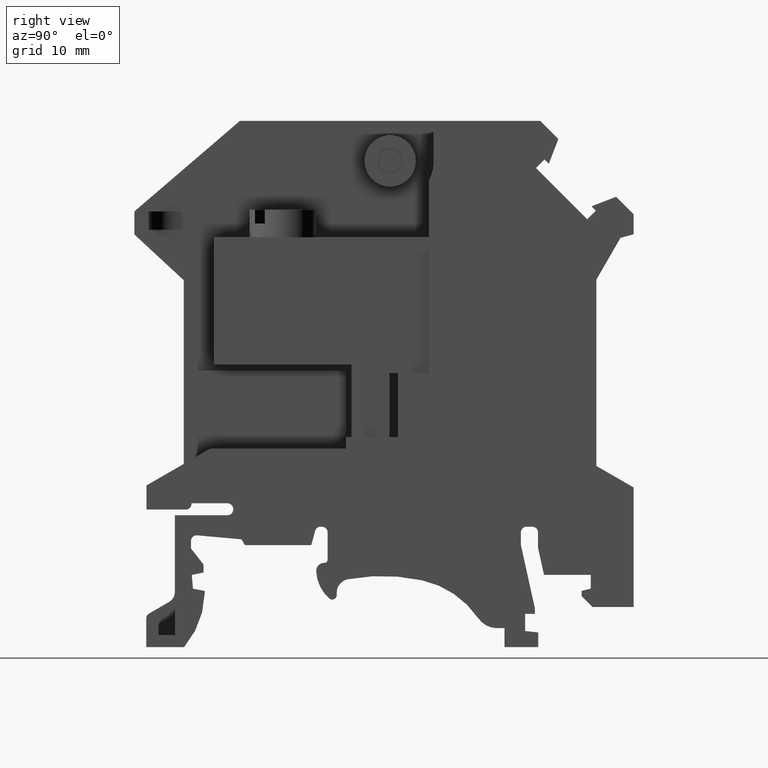
[diagram: clean part render]
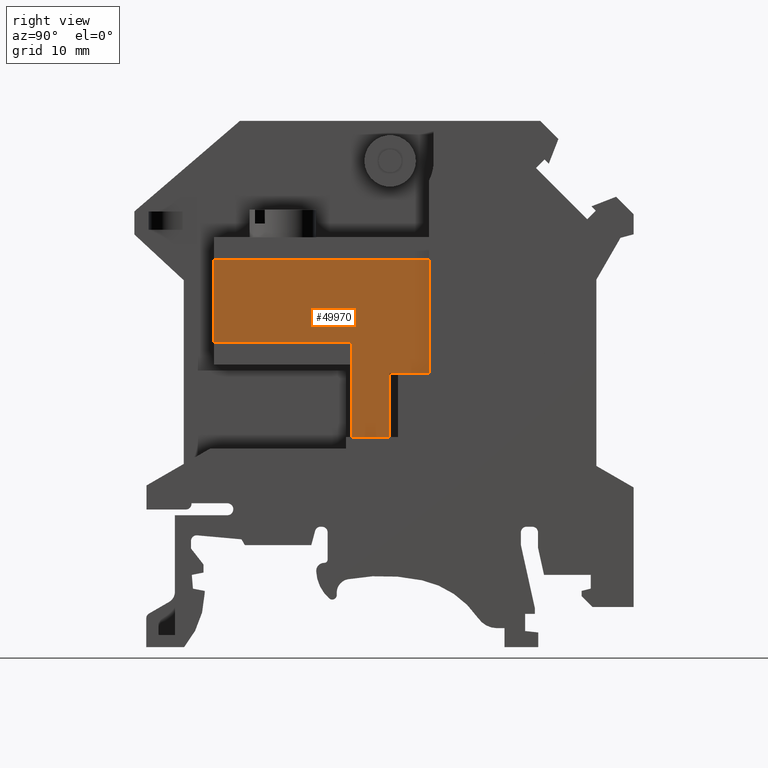
[diagram: same view with one face highlighted and labeled with its STEP entity id]
A machine part, right view. The second image highlights one B-rep face of the part: STEP entity #49970.
In plain terms, the highlighted planar face has unit normal (-1, 0, 0).
Its self-contained STEP definition (entity closure, byte-faithful):
#8340=CARTESIAN_POINT('',(32.5291997327281,14.0586581777009,7.65));
#8350=VERTEX_POINT('',#8340);
#8400=CARTESIAN_POINT('',(0.,14.0586581777009,7.65));
#8410=DIRECTION('',(-1.,0.,0.));
#8420=VECTOR('',#8410,1.);
#8430=LINE('',#8400,#8420);
#8440=CARTESIAN_POINT('',(35.2291997327281,14.0586581777009,7.65));
#8450=VERTEX_POINT('',#8440);
#8460=EDGE_CURVE('',#8450,#8350,#8430,.T.);
#22590=CARTESIAN_POINT('',(28.4791997327281,8.45865817770094,7.65));
#22600=VERTEX_POINT('',#22590);
#22630=CARTESIAN_POINT('',(0.,8.45865817770094,7.65));
#22640=DIRECTION('',(-1.,0.,0.));
#22650=VECTOR('',#22640,1.);
#22660=LINE('',#22630,#22650);
#22670=CARTESIAN_POINT('',(31.7791997327281,8.45865817770094,7.65));
#22680=VERTEX_POINT('',#22670);
#22690=EDGE_CURVE('',#22680,#22600,#22660,.T.);
#41690=CARTESIAN_POINT('',(35.2291997327281,23.9586581777009,7.65));
#41700=VERTEX_POINT('',#41690);
#41900=CARTESIAN_POINT('',(35.2291997327281,0.,7.65));
#41910=DIRECTION('',(1.96616064868917E-16,-1.,0.));
#41920=VECTOR('',#41910,1.);
#41930=LINE('',#41900,#41920);
#41940=EDGE_CURVE('',#41700,#8450,#41930,.T.);
#47580=CARTESIAN_POINT('',(31.7791997327281,14.0586581777009,7.65));
#47590=VERTEX_POINT('',#47580);
#47620=CARTESIAN_POINT('',(0.,14.0586581777009,7.65));
#47630=DIRECTION('',(-1.,0.,0.));
#47640=VECTOR('',#47630,1.);
#47650=LINE('',#47620,#47640);
#47660=EDGE_CURVE('',#8350,#47590,#47650,.T.);
#47970=CARTESIAN_POINT('',(28.4791997327281,14.8056376090079,7.65));
#47980=VERTEX_POINT('',#47970);
#48230=CARTESIAN_POINT('',(28.4791997327281,-80.0413418222991,7.65));
#48240=DIRECTION('',(0.,-1.,0.));
#48250=VECTOR('',#48240,1.);
#48260=LINE('',#48230,#48250);
#48270=EDGE_CURVE('',#47980,#22600,#48260,.T.);
#48830=CARTESIAN_POINT('',(16.4791997327281,16.7586581777009,7.65));
#48840=VERTEX_POINT('',#48830);
#49510=CARTESIAN_POINT('',(87.4791997327281,-80.0413418222991,7.65));
#49520=DIRECTION('',(0.,0.,-1.));
#49530=DIRECTION('',(-1.,0.,0.));
#49540=AXIS2_PLACEMENT_3D('',#49510,#49520,#49530);
#49550=PLANE('',#49540);
#49560=ORIENTED_EDGE('',*,*,#8460,.F.);
#49570=ORIENTED_EDGE('',*,*,#47660,.F.);
#49580=CARTESIAN_POINT('',(31.7791997327281,0.,7.65));
#49590=DIRECTION('',(0.,1.,0.));
#49600=VECTOR('',#49590,1.);
#49610=LINE('',#49580,#49600);
#49620=EDGE_CURVE('',#22680,#47590,#49610,.T.);
#49630=ORIENTED_EDGE('',*,*,#49620,.T.);
#49640=ORIENTED_EDGE('',*,*,#22690,.F.);
#49650=ORIENTED_EDGE('',*,*,#48270,.T.);
#49660=CARTESIAN_POINT('',(28.4791997327281,0.,7.65));
#49670=DIRECTION('',(0.,1.,0.));
#49680=VECTOR('',#49670,1.);
#49690=LINE('',#49660,#49680);
#49700=CARTESIAN_POINT('',(28.4791997327281,16.7586581777009,7.65));
#49710=VERTEX_POINT('',#49700);
#49720=EDGE_CURVE('',#47980,#49710,#49690,.T.);
#49730=ORIENTED_EDGE('',*,*,#49720,.F.);
#49740=CARTESIAN_POINT('',(0.,16.7586581777009,7.65));
#49750=DIRECTION('',(-1.,0.,0.));
#49760=VECTOR('',#49750,1.);
#49770=LINE('',#49740,#49760);
#49780=EDGE_CURVE('',#49710,#48840,#49770,.T.);
#49790=ORIENTED_EDGE('',*,*,#49780,.F.);
#49800=CARTESIAN_POINT('',(16.4791997327281,23.9586581777009,7.65));
#49810=DIRECTION('',(0.,-1.,0.));
#49820=VECTOR('',#49810,1.);
#49830=LINE('',#49800,#49820);
#49840=CARTESIAN_POINT('',(16.4791997327281,23.9586581777009,7.65));
#49850=VERTEX_POINT('',#49840);
#49860=EDGE_CURVE('',#49850,#48840,#49830,.T.);
#49870=ORIENTED_EDGE('',*,*,#49860,.T.);
#49880=CARTESIAN_POINT('',(0.,23.9586581777009,7.65));
#49890=DIRECTION('',(1.,0.,0.));
#49900=VECTOR('',#49890,1.);
#49910=LINE('',#49880,#49900);
#49920=EDGE_CURVE('',#49850,#41700,#49910,.T.);
#49930=ORIENTED_EDGE('',*,*,#49920,.F.);
#49940=ORIENTED_EDGE('',*,*,#41940,.F.);
#49950=EDGE_LOOP('',(#49940,#49930,#49870,#49790,#49730,#49650,#49640,
#49630,#49570,#49560));
#49960=FACE_OUTER_BOUND('',#49950,.T.);
#49970=ADVANCED_FACE('',(#49960),#49550,.F.);